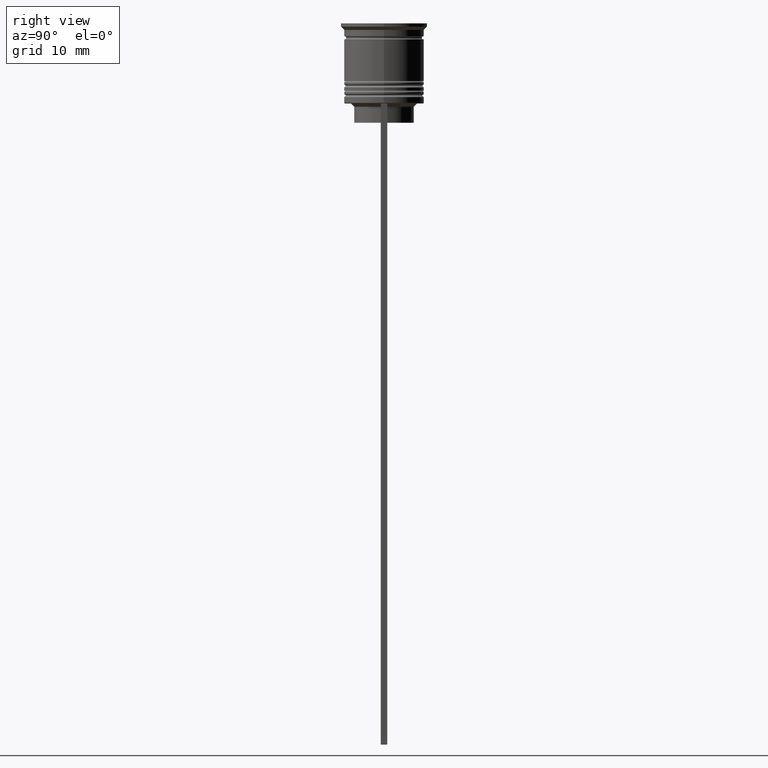
[diagram: clean part render]
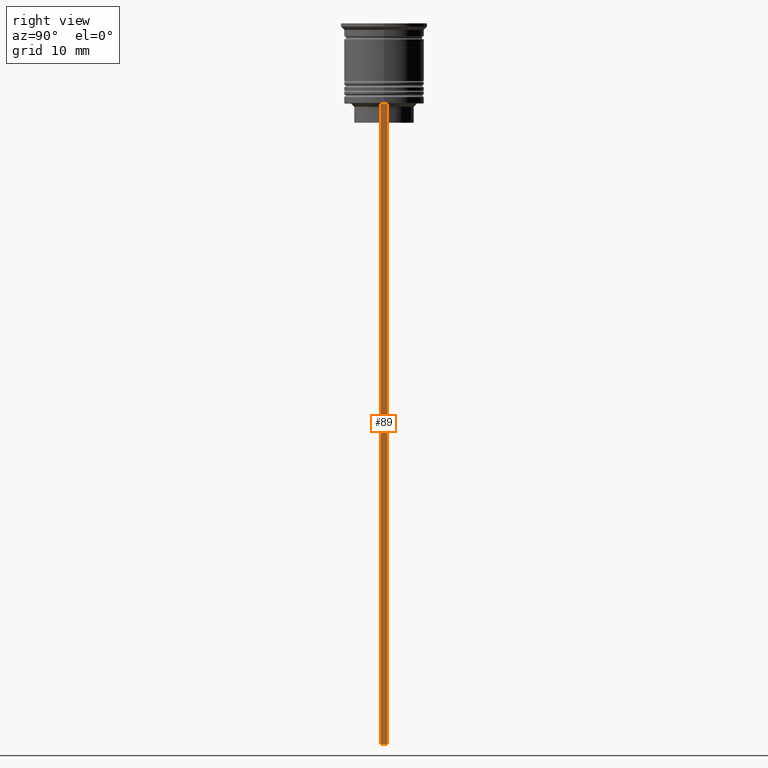
[diagram: same view with one face highlighted and labeled with its STEP entity id]
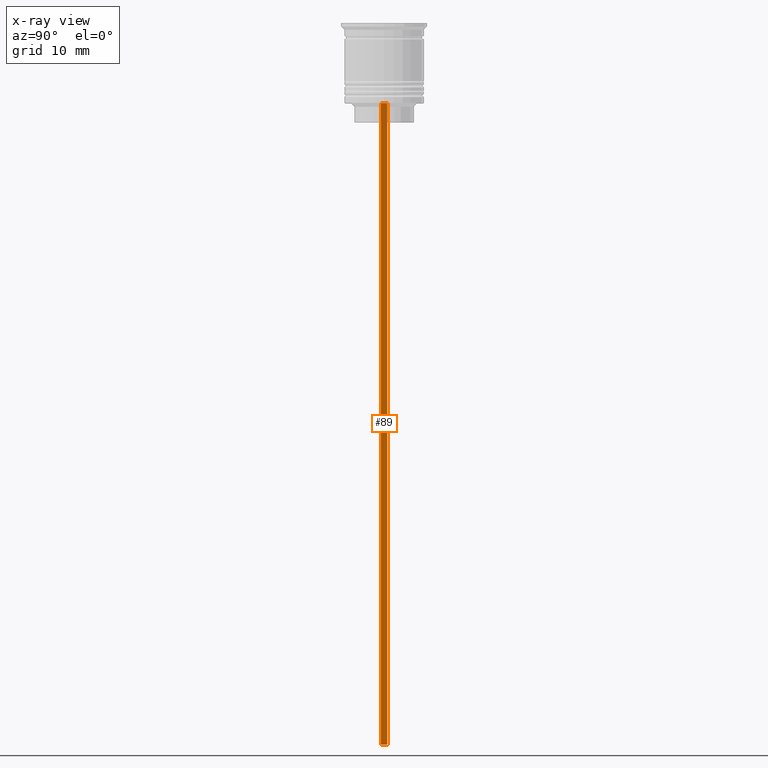
[diagram: x-ray of the same camera — body ghosted, the highlighted face saturated]
A machine part, right view. The second image highlights one B-rep face of the part: STEP entity #89.
The next image is the same camera in x-ray: the body ghosted, the highlighted face saturated — about 0% of this face is hidden behind the body in this view.
In plain terms, the highlighted planar face has unit normal (-1, 0, 0).
Its self-contained STEP definition (entity closure, byte-faithful):
#89 = ADVANCED_FACE ( 'NONE', ( #466 ), #1899, .F. ) ;
#108 = LINE ( 'NONE', #2048, #554 ) ;
#149 = VERTEX_POINT ( 'NONE', #1930 ) ;
#175 = VECTOR ( 'NONE', #297, 1000.000000000000000 ) ;
#297 = DIRECTION ( 'NONE',  ( 0.000000000000000000, -1.000000000000000000, 0.000000000000000000 ) ) ;
#317 = VERTEX_POINT ( 'NONE', #1653 ) ;
#466 = FACE_OUTER_BOUND ( 'NONE', #682, .T. ) ;
#473 = ORIENTED_EDGE ( 'NONE', *, *, #2193, .T. ) ;
#497 = EDGE_CURVE ( 'NONE', #317, #1387, #108, .T. ) ;
#554 = VECTOR ( 'NONE', #1140, 1000.000000000000000 ) ;
#624 = CARTESIAN_POINT ( 'NONE',  ( 6.000000000000016875, -0.5000000000000017764, -112.5000000000000000 ) ) ;
#657 = CARTESIAN_POINT ( 'NONE',  ( 6.000000000000016875, 0.4999999999999982792, -0.4584054212077061097 ) ) ;
#682 = EDGE_LOOP ( 'NONE', ( #2227, #2291, #2190, #473 ) ) ;
#804 = DIRECTION ( 'NONE',  ( 0.000000000000000000, 1.000000000000000000, 0.000000000000000000 ) ) ;
#827 = DIRECTION ( 'NONE',  ( -1.000000000000000000, 0.000000000000000000, 0.000000000000000000 ) ) ;
#830 = LINE ( 'NONE', #657, #1493 ) ;
#837 = CARTESIAN_POINT ( 'NONE',  ( 6.000000000000016875, -0.5000000000000017764, -12.50000000000000000 ) ) ;
#935 = EDGE_CURVE ( 'NONE', #149, #2130, #830, .T. ) ;
#1002 = VECTOR ( 'NONE', #804, 1000.000000000000000 ) ;
#1140 = DIRECTION ( 'NONE',  ( 0.000000000000000000, 0.000000000000000000, -1.000000000000000000 ) ) ;
#1348 = DIRECTION ( 'NONE',  ( 0.000000000000000000, 0.000000000000000000, -1.000000000000000000 ) ) ;
#1363 = LINE ( 'NONE', #837, #175 ) ;
#1364 = EDGE_CURVE ( 'NONE', #149, #317, #1363, .T. ) ;
#1387 = VERTEX_POINT ( 'NONE', #1545 ) ;
#1489 = AXIS2_PLACEMENT_3D ( 'NONE', #1877, #827, #1721 ) ;
#1493 = VECTOR ( 'NONE', #1348, 1000.000000000000000 ) ;
#1504 = LINE ( 'NONE', #624, #1002 ) ;
#1545 = CARTESIAN_POINT ( 'NONE',  ( 6.000000000000016875, -0.5000000000000017764, -112.5000000000000000 ) ) ;
#1653 = CARTESIAN_POINT ( 'NONE',  ( 6.000000000000016875, -0.5000000000000017764, -12.50000000000000000 ) ) ;
#1721 = DIRECTION ( 'NONE',  ( 0.000000000000000000, 0.000000000000000000, 1.000000000000000000 ) ) ;
#1877 = CARTESIAN_POINT ( 'NONE',  ( 6.000000000000016875, -0.5000000000000017764, -0.4584054212077061097 ) ) ;
#1899 = PLANE ( 'NONE',  #1489 ) ;
#1930 = CARTESIAN_POINT ( 'NONE',  ( 6.000000000000016875, 0.4999999999999982792, -12.50000000000000000 ) ) ;
#2048 = CARTESIAN_POINT ( 'NONE',  ( 6.000000000000016875, -0.5000000000000017764, -0.4584054212077061097 ) ) ;
#2130 = VERTEX_POINT ( 'NONE', #2259 ) ;
#2190 = ORIENTED_EDGE ( 'NONE', *, *, #497, .T. ) ;
#2193 = EDGE_CURVE ( 'NONE', #1387, #2130, #1504, .T. ) ;
#2227 = ORIENTED_EDGE ( 'NONE', *, *, #935, .F. ) ;
#2259 = CARTESIAN_POINT ( 'NONE',  ( 6.000000000000016875, 0.4999999999999982792, -112.5000000000000000 ) ) ;
#2291 = ORIENTED_EDGE ( 'NONE', *, *, #1364, .T. ) ;